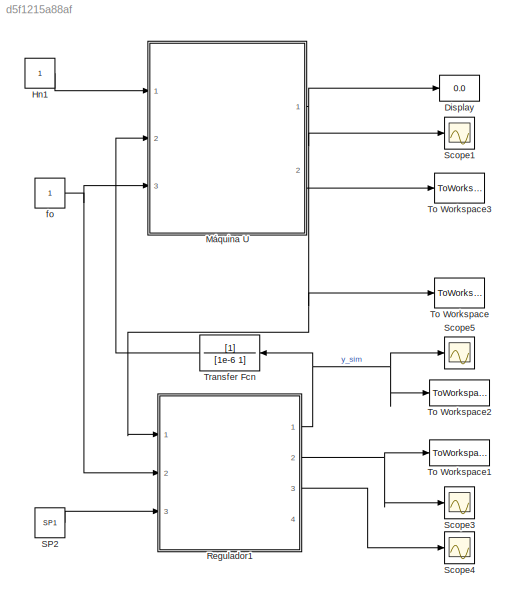
MODEL slx_d5f1215a88af
KIND model
CONFIG AbsTol = auto
CONFIG EnableMultiTasking = off
CONFIG FixedStep = auto
CONFIG MaxStep = auto
CONFIG MinStep = auto
CONFIG RelTol = 1e-3
CONFIG SampleTimeConstraint = Unconstrained
CONFIG Solver = VariableStepAuto
CONFIG SolverName = VariableStepAuto
CONFIG StartTime = 0.0
CONFIG StopTime = 300
BLOCK [Display] Display
  Decimation = 1
  Ports = [1]
BLOCK [Constant] Hn1
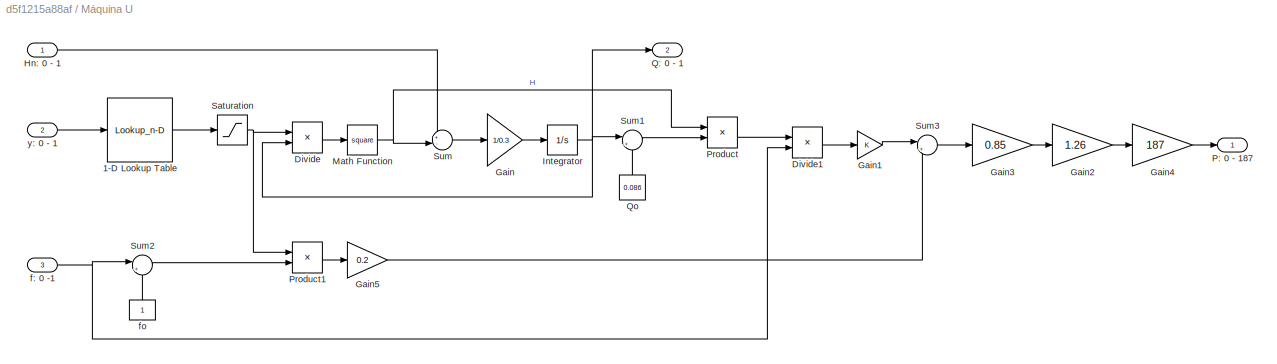
BLOCK [SubSystem] Máquina U
  Ports = [3, 2]
  RequestExecContextInheritance = off
BLOCK [Lookup_n-D] Máquina U/1-D Lookup Table
  BreakpointsForDimension1 = [0,0.072,0.336,0.35,0.4,0.45,0.5,0.55,0.6,0.65,0.7,0.75,0.8,0.85,0.9,0.95,1]
  InternalRulePriority = Speed
  NumberOfTableDimensions = 1
  Ports = [1, 1]
  RndMeth = Simplest
  Table = [0,0.086,0.387,0.4035,0.4592,0.5194,0.5826,0.6475,0.7127,0.777,0.8389,0.8971,0.9502,0.9969,1.0358,1.0656,1.0849]
BLOCK [Product] Máquina U/Divide
  Inputs = /*
  Ports = [2, 1]
BLOCK [Product] Máquina U/Divide1
  Inputs = */
  Ports = [2, 1]
BLOCK [Gain] Máquina U/Gain
  Gain = 1/0.3
BLOCK [Gain] Máquina U/Gain1
BLOCK [Gain] Máquina U/Gain2
  Gain = 1.26
BLOCK [Gain] Máquina U/Gain3
  Gain = 0.85
BLOCK [Gain] Máquina U/Gain4
  Gain = 187
BLOCK [Gain] Máquina U/Gain5
  Gain = 0.2
BLOCK [Inport] Máquina U/Hn: 0 - 1
BLOCK [Integrator] Máquina U/Integrator
  InitialCondition = 0.3
  Ports = [1, 1]
BLOCK [Math] Máquina U/Math Function
  Operator = square
  Ports = [1, 1]
BLOCK [Outport] Máquina U/P: 0 - 187
BLOCK [Product] Máquina U/Product
  Ports = [2, 1]
BLOCK [Product] Máquina U/Product1
  Ports = [2, 1]
BLOCK [Outport] Máquina U/Q: 0 - 1
  Port = 2
BLOCK [Constant] Máquina U/Qo
  Value = 0.086
BLOCK [Saturate] Máquina U/Saturation
  LowerLimit = 0.0001
  UpperLimit = 1.1
BLOCK [Sum] Máquina U/Sum
  Inputs = +-|
  Ports = [2, 1]
BLOCK [Sum] Máquina U/Sum1
  Inputs = |+-
  Ports = [2, 1]
BLOCK [Sum] Máquina U/Sum2
  Inputs = |+-
  Ports = [2, 1]
BLOCK [Sum] Máquina U/Sum3
  Inputs = |+-
  Ports = [2, 1]
BLOCK [Inport] Máquina U/f: 0 -1
  Port = 3
BLOCK [Constant] Máquina U/fo
BLOCK [Inport] Máquina U/y: 0 - 1
  Port = 2
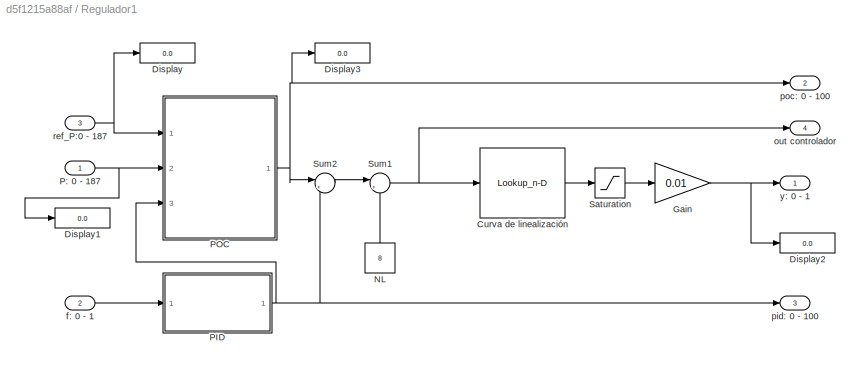
BLOCK [SubSystem] Regulador1
  Ports = [3, 4]
  RequestExecContextInheritance = off
BLOCK [Lookup_n-D] Regulador1/Curva de linealización
  BreakpointsForDimension1 = [-1,0,8,8.001,18,38,48,58,68,78,88,98,107,151]
  InternalRulePriority = Speed
  NumberOfTableDimensions = 1
  Ports = [1, 1]
  RndMeth = Simplest
  Table = [-1,0,8,8.001,17.4,33.1,40,46.3,51.8,59.0,67,78,89,115]
BLOCK [Display] Regulador1/Display
  Decimation = 1
  Ports = [1]
BLOCK [Display] Regulador1/Display1
  Decimation = 1
  Ports = [1]
BLOCK [Display] Regulador1/Display2
  Decimation = 1
  Ports = [1]
BLOCK [Display] Regulador1/Display3
  Decimation = 1
  Ports = [1]
BLOCK [Gain] Regulador1/Gain
  Gain = 0.01
BLOCK [Constant] Regulador1/NL
  NameLocation = right
  Value = 8
BLOCK [Inport] Regulador1/P: 0 - 187
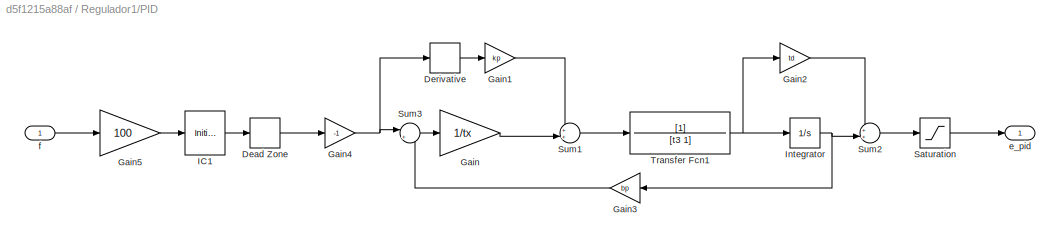
BLOCK [SubSystem] Regulador1/PID
  Ports = [1, 1]
  RequestExecContextInheritance = off
BLOCK [DeadZone] Regulador1/PID/Dead Zone
  LowerValue = 100-0.01
  UpperValue = 100+0.01
BLOCK [Derivative] Regulador1/PID/Derivative
BLOCK [Gain] Regulador1/PID/Gain
  Gain = 1/tx
BLOCK [Gain] Regulador1/PID/Gain1
  Gain = kp
BLOCK [Gain] Regulador1/PID/Gain2
  Gain = td
BLOCK [Gain] Regulador1/PID/Gain3
  Gain = bp
  NameLocation = top
BLOCK [Gain] Regulador1/PID/Gain4
  Gain = -1
BLOCK [Gain] Regulador1/PID/Gain5
  Gain = 100
BLOCK [InitialCondition] Regulador1/PID/IC1
  Value = 100
BLOCK [Integrator] Regulador1/PID/Integrator
  Ports = [1, 1]
BLOCK [Saturate] Regulador1/PID/Saturation
  LowerLimit = -2.5
  UpperLimit = 2.5
BLOCK [Sum] Regulador1/PID/Sum1
  Inputs = ++|
  Ports = [2, 1]
BLOCK [Sum] Regulador1/PID/Sum2
  Inputs = ++|
  Ports = [2, 1]
BLOCK [Sum] Regulador1/PID/Sum3
  Inputs = |+-
  Ports = [2, 1]
BLOCK [TransferFcn] Regulador1/PID/Transfer Fcn1
  Denominator = [t3 1]
BLOCK [Outport] Regulador1/PID/e_pid
BLOCK [Inport] Regulador1/PID/f
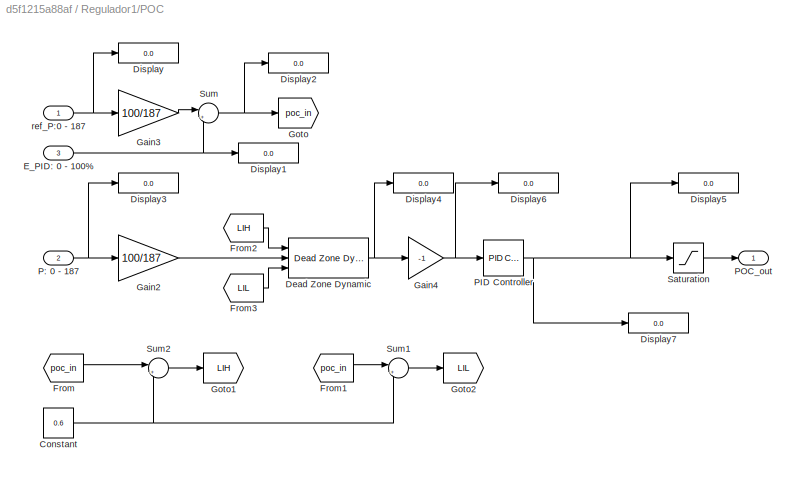
BLOCK [SubSystem] Regulador1/POC
  Ports = [3, 1]
  RequestExecContextInheritance = off
BLOCK [Constant] Regulador1/POC/Constant
  Value = 0.6
BLOCK [Reference] Regulador1/POC/Dead Zone Dynamic  REF=simulink/Discontinuities/Dead Zone
Dynamic
  Ports = [3, 1]
  SourceBlock = simulink/Discontinuities/Dead Zone\nDynamic
  SourceProductBaseCode = SL
  SourceType = Dead Zone Dynamic
BLOCK [Display] Regulador1/POC/Display
  Decimation = 1
  Ports = [1]
BLOCK [Display] Regulador1/POC/Display1
  Decimation = 1
  Ports = [1]
BLOCK [Display] Regulador1/POC/Display2
  Decimation = 1
  Ports = [1]
BLOCK [Display] Regulador1/POC/Display3
  Decimation = 1
  Ports = [1]
BLOCK [Display] Regulador1/POC/Display4
  Decimation = 1
  Ports = [1]
BLOCK [Display] Regulador1/POC/Display5
  Decimation = 1
  Ports = [1]
BLOCK [Display] Regulador1/POC/Display6
  Decimation = 1
  Ports = [1]
BLOCK [Display] Regulador1/POC/Display7
  Decimation = 1
  Ports = [1]
BLOCK [Inport] Regulador1/POC/E_PID: 0 - 100%
  Port = 3
BLOCK [From] Regulador1/POC/From
  GotoTag = poc_in
BLOCK [From] Regulador1/POC/From1
  GotoTag = poc_in
BLOCK [From] Regulador1/POC/From2
  GotoTag = LIH
BLOCK [From] Regulador1/POC/From3
  GotoTag = LIL
BLOCK [Gain] Regulador1/POC/Gain2
  Gain = 100/187
BLOCK [Gain] Regulador1/POC/Gain3
  Gain = 100/187
BLOCK [Gain] Regulador1/POC/Gain4
  Gain = -1
BLOCK [Goto] Regulador1/POC/Goto
  GotoTag = poc_in
BLOCK [Goto] Regulador1/POC/Goto1
  GotoTag = LIH
BLOCK [Goto] Regulador1/POC/Goto2
  GotoTag = LIL
BLOCK [Inport] Regulador1/POC/P: 0 - 187
  Port = 2
BLOCK [Reference] Regulador1/POC/PID Controller  REF=simulink/Continuous/PID Controller
  Ports = [1, 1]
  SourceBlock = simulink/Continuous/PID Controller
  SourceProductBaseCode = SL
  SourceType = PID 1dof
BLOCK [Outport] Regulador1/POC/POC_out
BLOCK [Saturate] Regulador1/POC/Saturation
  LowerLimit = -1
  UpperLimit = 120
  ZeroCross = off
BLOCK [Sum] Regulador1/POC/Sum
  Inputs = |++
  Ports = [2, 1]
BLOCK [Sum] Regulador1/POC/Sum1
  Inputs = |+-
  Ports = [2, 1]
BLOCK [Sum] Regulador1/POC/Sum2
  Inputs = |++
  Ports = [2, 1]
BLOCK [Inport] Regulador1/POC/ref_P:0 - 187
BLOCK [Saturate] Regulador1/Saturation
  LowerLimit = 7.9
  UpperLimit = 115
  ZeroCross = off
BLOCK [Sum] Regulador1/Sum1
  Inputs = |++
  Ports = [2, 1]
BLOCK [Sum] Regulador1/Sum2
  Inputs = |++
  Ports = [2, 1]
BLOCK [Inport] Regulador1/f: 0 - 1
  Port = 2
BLOCK [Outport] Regulador1/out controlador
  Port = 4
BLOCK [Outport] Regulador1/pid: 0 - 100
  Port = 3
BLOCK [Outport] Regulador1/poc: 0 - 100
  Port = 2
BLOCK [Inport] Regulador1/ref_P:0 - 187
  Port = 3
BLOCK [Outport] Regulador1/y: 0 - 1
BLOCK [Constant] SP2
  Value = SP1
BLOCK [Scope] Scope1
  Floating = off
  NumInputPorts = 1
  Ports = [1]
  ScopeSpecificationString = Simulink.scopes.TimeScopeBlockCfg('CurrentConfiguration', extmgr.ConfigurationSet(extmgr.Configuration('Core','General UI',true),extmgr.Configuration('Core','Source UI',true),extmgr.Configuration('Sources','WiredSimulink',true,'DataLoggingVariableName','ScopeData2'),extmgr.Configuration('Visuals','Time Domain',true,'SerializedDisplays',{struct('MinYLimReal','-445163.88991','MaxYLimReal','286391.71...<+1480ch>
BLOCK [Scope] Scope3
  Floating = off
  NumInputPorts = 1
  Ports = [1]
  ScopeSpecificationString = Simulink.scopes.TimeScopeBlockCfg('CurrentConfiguration', extmgr.ConfigurationSet(extmgr.Configuration('Core','General UI',true),extmgr.Configuration('Core','Source UI',true),extmgr.Configuration('Sources','WiredSimulink',true,'DataLoggingVariableName','ScopeData3'),extmgr.Configuration('Visuals','Time Domain',true,'SerializedDisplays',{struct('MinYLimReal','-11.37835','MaxYLimReal','92.40511','YL...<+1448ch>
BLOCK [Scope] Scope4
  Floating = off
  NumInputPorts = 1
  Ports = [1]
  ScopeSpecificationString = Simulink.scopes.TimeScopeBlockCfg('CurrentConfiguration', extmgr.ConfigurationSet(extmgr.Configuration('Core','General UI',true),extmgr.Configuration('Core','Source UI',true),extmgr.Configuration('Sources','WiredSimulink',true,'DataLoggingVariableName','ScopeData4'),extmgr.Configuration('Visuals','Time Domain',true,'SerializedDisplays',{struct('MinYLimReal','-1.00000','MaxYLimReal','1.00000','YLab...<+1442ch>
BLOCK [Scope] Scope5
  Floating = off
  NumInputPorts = 1
  Ports = [1]
  ScopeSpecificationString = Simulink.scopes.TimeScopeBlockCfg('CurrentConfiguration', extmgr.ConfigurationSet(extmgr.Configuration('Core','General UI',true),extmgr.Configuration('Core','Source UI',true),extmgr.Configuration('Sources','WiredSimulink',true,'DataLoggingVariableName','ScopeData5'),extmgr.Configuration('Visuals','Time Domain',true,'SerializedDisplays',{struct('MinYLimReal','0.04764','MaxYLimReal','0.3612','YLabel...<+1429ch>
BLOCK [ToWorkspace] To Workspace
  FixptAsFi = on
  MaxDataPoints = inf
  Ports = [1]
  SampleTime = 1
  SaveFormat = Timeseries
  VariableName = P_sim
BLOCK [ToWorkspace] To Workspace1
  FixptAsFi = on
  MaxDataPoints = 1
  Ports = [1]
  SampleTime = -1
  VariableName = poc_i
BLOCK [ToWorkspace] To Workspace2
  FixptAsFi = on
  MaxDataPoints = 1
  Ports = [1]
  SampleTime = -1
  VariableName = y_i
BLOCK [ToWorkspace] To Workspace3
  FixptAsFi = on
  MaxDataPoints = 1
  Ports = [1]
  SampleTime = 1
  VariableName = q_i
BLOCK [TransferFcn] Transfer Fcn
  Denominator = [1e-6 1]
  NameLocation = top
BLOCK [Constant] fo
LINE Hn1:1 -> Máquina U:1
LINE Máquina U/1-D Lookup Table:1 -> Máquina U/Saturation:1
LINE Máquina U/Divide1:1 -> Máquina U/Gain1:1
LINE Máquina U/Divide:1 -> Máquina U/Math Function:1
LINE Máquina U/Gain1:1 -> Máquina U/Sum3:1
LINE Máquina U/Gain2:1 -> Máquina U/Gain4:1
LINE Máquina U/Gain3:1 -> Máquina U/Gain2:1
LINE Máquina U/Gain4:1 -> Máquina U/P: 0 - 187:1
LINE Máquina U/Gain5:1 -> Máquina U/Sum3:2
LINE Máquina U/Gain:1 -> Máquina U/Integrator:1
LINE Máquina U/Hn: 0 - 1:1 -> Máquina U/Sum:1
NET Máquina U/Integrator:1 -> Máquina U/Divide:2, Máquina U/Q: 0 - 1:1, Máquina U/Sum1:1
NET Máquina U/Math Function:1 -> Máquina U/Product:1, Máquina U/Sum:2
LINE Máquina U/Product1:1 -> Máquina U/Gain5:1
LINE Máquina U/Product:1 -> Máquina U/Divide1:1
LINE Máquina U/Qo:1 -> Máquina U/Sum1:2
NET Máquina U/Saturation:1 -> Máquina U/Divide:1, Máquina U/Product1:1
LINE Máquina U/Sum1:1 -> Máquina U/Product:2
LINE Máquina U/Sum2:1 -> Máquina U/Product1:2
LINE Máquina U/Sum3:1 -> Máquina U/Gain3:1
LINE Máquina U/Sum:1 -> Máquina U/Gain:1
NET Máquina U/f: 0 -1:1 -> Máquina U/Divide1:2, Máquina U/Sum2:1
LINE Máquina U/fo:1 -> Máquina U/Sum2:2
LINE Máquina U/y: 0 - 1:1 -> Máquina U/1-D Lookup Table:1
NET Máquina U:1 -> Display:1, Regulador1:1, Scope1:1, To Workspace:1
LINE Máquina U:2 -> To Workspace3:1
LINE Regulador1/Curva de linealización:1 -> Regulador1/Saturation:1
NET Regulador1/Gain:1 -> Regulador1/Display2:1, Regulador1/y: 0 - 1:1
LINE Regulador1/NL:1 -> Regulador1/Sum1:2
NET Regulador1/P: 0 - 187:1 -> Regulador1/Display1:1, Regulador1/POC:2
LINE Regulador1/PID/Dead Zone:1 -> Regulador1/PID/Gain4:1
LINE Regulador1/PID/Derivative:1 -> Regulador1/PID/Gain1:1
LINE Regulador1/PID/Gain1:1 -> Regulador1/PID/Sum1:1
LINE Regulador1/PID/Gain2:1 -> Regulador1/PID/Sum2:1
LINE Regulador1/PID/Gain3:1 -> Regulador1/PID/Sum3:2
NET Regulador1/PID/Gain4:1 -> Regulador1/PID/Derivative:1, Regulador1/PID/Sum3:1
LINE Regulador1/PID/Gain5:1 -> Regulador1/PID/IC1:1
LINE Regulador1/PID/Gain:1 -> Regulador1/PID/Sum1:2
LINE Regulador1/PID/IC1:1 -> Regulador1/PID/Dead Zone:1
NET Regulador1/PID/Integrator:1 -> Regulador1/PID/Gain3:1, Regulador1/PID/Sum2:2
LINE Regulador1/PID/Saturation:1 -> Regulador1/PID/e_pid:1
LINE Regulador1/PID/Sum1:1 -> Regulador1/PID/Transfer Fcn1:1
LINE Regulador1/PID/Sum2:1 -> Regulador1/PID/Saturation:1
LINE Regulador1/PID/Sum3:1 -> Regulador1/PID/Gain:1
NET Regulador1/PID/Transfer Fcn1:1 -> Regulador1/PID/Gain2:1, Regulador1/PID/Integrator:1
LINE Regulador1/PID/f:1 -> Regulador1/PID/Gain5:1
NET Regulador1/PID:1 -> Regulador1/POC:3, Regulador1/Sum2:2, Regulador1/pid: 0 - 100:1
NET Regulador1/POC/Constant:1 -> Regulador1/POC/Sum1:2, Regulador1/POC/Sum2:2
NET Regulador1/POC/Dead Zone Dynamic:1 -> Regulador1/POC/Display4:1, Regulador1/POC/Gain4:1
NET Regulador1/POC/E_PID: 0 - 100%:1 -> Regulador1/POC/Display1:1, Regulador1/POC/Sum:2
LINE Regulador1/POC/From1:1 -> Regulador1/POC/Sum1:1
LINE Regulador1/POC/From2:1 -> Regulador1/POC/Dead Zone Dynamic:1
LINE Regulador1/POC/From3:1 -> Regulador1/POC/Dead Zone Dynamic:3
LINE Regulador1/POC/From:1 -> Regulador1/POC/Sum2:1
LINE Regulador1/POC/Gain2:1 -> Regulador1/POC/Dead Zone Dynamic:2
LINE Regulador1/POC/Gain3:1 -> Regulador1/POC/Sum:1
NET Regulador1/POC/Gain4:1 -> Regulador1/POC/Display6:1, Regulador1/POC/PID Controller:1
NET Regulador1/POC/P: 0 - 187:1 -> Regulador1/POC/Display3:1, Regulador1/POC/Gain2:1
NET Regulador1/POC/PID Controller:1 -> Regulador1/POC/Display5:1, Regulador1/POC/Display7:1, Regulador1/POC/Saturation:1
LINE Regulador1/POC/Saturation:1 -> Regulador1/POC/POC_out:1
LINE Regulador1/POC/Sum1:1 -> Regulador1/POC/Goto2:1
LINE Regulador1/POC/Sum2:1 -> Regulador1/POC/Goto1:1
NET Regulador1/POC/Sum:1 -> Regulador1/POC/Display2:1, Regulador1/POC/Goto:1
NET Regulador1/POC/ref_P:0 - 187:1 -> Regulador1/POC/Display:1, Regulador1/POC/Gain3:1
NET Regulador1/POC:1 -> Regulador1/Display3:1, Regulador1/Sum2:1, Regulador1/poc: 0 - 100:1
LINE Regulador1/Saturation:1 -> Regulador1/Gain:1
NET Regulador1/Sum1:1 -> Regulador1/Curva de linealización:1, Regulador1/out controlador:1
LINE Regulador1/Sum2:1 -> Regulador1/Sum1:1
LINE Regulador1/f: 0 - 1:1 -> Regulador1/PID:1
NET Regulador1/ref_P:0 - 187:1 -> Regulador1/Display:1, Regulador1/POC:1
NET Regulador1:1 -> Scope5:1, To Workspace2:1, Transfer Fcn:1
NET Regulador1:2 -> Scope3:1, To Workspace1:1
LINE Regulador1:3 -> Scope4:1
LINE SP2:1 -> Regulador1:3
LINE Transfer Fcn:1 -> Máquina U:2
NET fo:1 -> Máquina U:3, Regulador1:2
note: NET lines group one-source signal fan-out (src -> all destinations, sorted); 1:1 wires keep LINE
